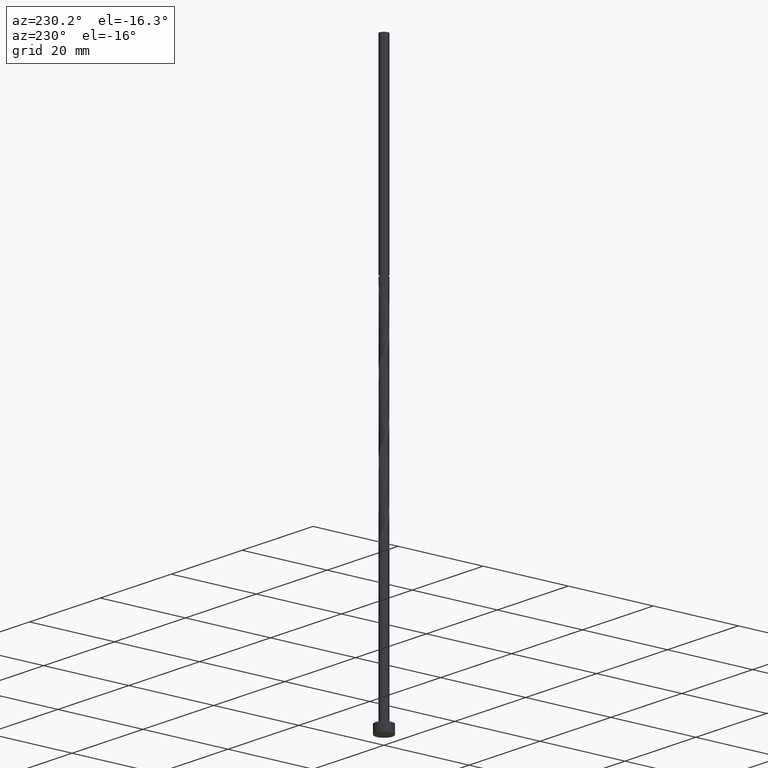
[diagram: clean part render]
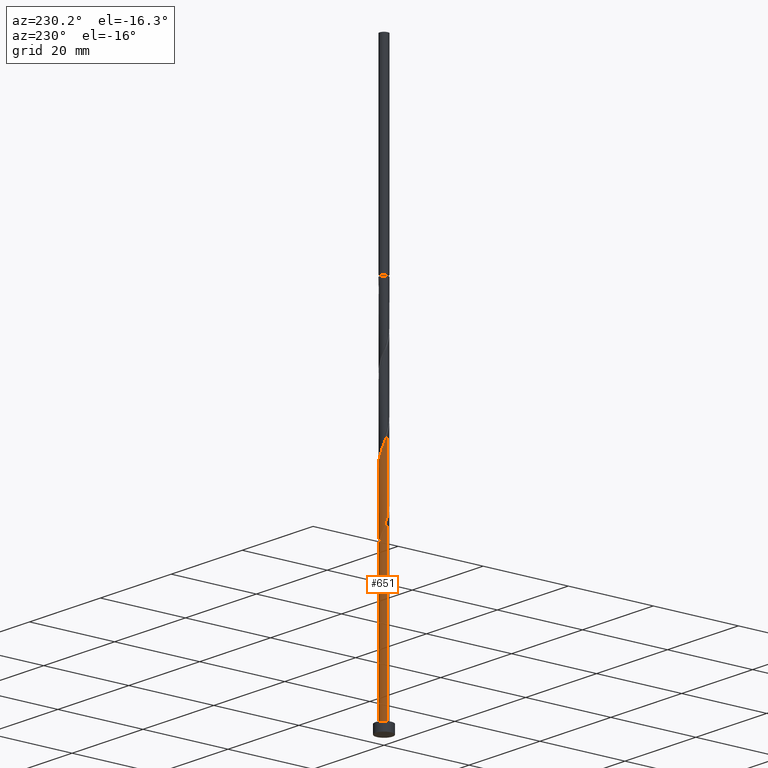
[diagram: same view with one face highlighted and labeled with its STEP entity id]
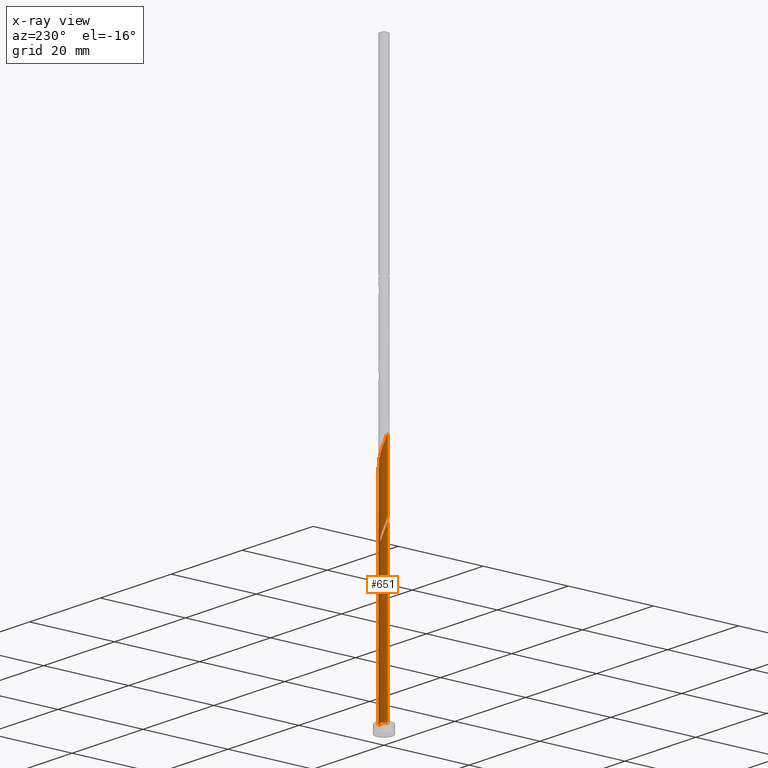
[diagram: x-ray of the same camera — body ghosted, the highlighted face saturated]
A machine part, auxiliary view. The second image highlights one B-rep face of the part: STEP entity #651.
The next image is the same camera in x-ray: the body ghosted, the highlighted face saturated — about 0% of this face is hidden behind the body in this view.
In plain terms, the highlighted cylindrical surface (edge-blend (fillet) strip) has radius 1 mm, axis along (-0, -0, -1).
Its self-contained STEP definition (entity closure, byte-faithful):
#6 = CARTESIAN_POINT ( 'NONE',  ( 0.9996671490029763740, 0.02579905432887377725, 48.17226507037074157 ) ) ;
#9 = EDGE_CURVE ( 'NONE', #1105, #296, #215, .T. ) ;
#13 = CARTESIAN_POINT ( 'NONE',  ( 0.1989974874213210343, 0.9800000000000025357, 36.13522803333370348 ) ) ;
#25 = CARTESIAN_POINT ( 'NONE',  ( -0.9305560469009561686, 0.3661494825560581701, 39.83893173703739876 ) ) ;
#47 = ORIENTED_EDGE ( 'NONE', *, *, #466, .F. ) ;
#58 = DIRECTION ( 'NONE',  ( -1.000000000000000000, 0.000000000000000000, 0.000000000000000000 ) ) ;
#61 = CARTESIAN_POINT ( 'NONE',  ( -0.6725544933721987473, 0.7607638645273787636, 54.19078358888926061 ) ) ;
#66 = VECTOR ( 'NONE', #342, 1000.000000000000000 ) ;
#90 = CIRCLE ( 'NONE', #736, 1.000000000000000000 ) ;
#101 = VERTEX_POINT ( 'NONE', #354 ) ;
#106 = CARTESIAN_POINT ( 'NONE',  ( 0.02619704632702449590, 1.015088626125574711, 36.59819099629665118 ) ) ;
#108 = ORIENTED_EDGE ( 'NONE', *, *, #9, .T. ) ;
#111 = EDGE_CURVE ( 'NONE', #327, #1160, #1255, .T. ) ;
#114 = CARTESIAN_POINT ( 'NONE',  ( -0.6324182898423038601, 0.7944421381061699261, 38.45004284814852724 ) ) ;
#128 = CYLINDRICAL_SURFACE ( 'NONE', #1341, 1.000000000000000000 ) ;
#158 = DIRECTION ( 'NONE',  ( -0.000000000000000000, -0.000000000000000000, -1.000000000000000000 ) ) ;
#175 = CARTESIAN_POINT ( 'NONE',  ( 0.000000000000000000, 0.000000000000000000, 2.000000000000000000 ) ) ;
#176 = VERTEX_POINT ( 'NONE', #287 ) ;
#188 =( BOUNDED_CURVE ( )  B_SPLINE_CURVE ( 2, ( #453, #1463, #1217, #1020, #1003, #1134, #893, #283, #1324 ),
 .UNSPECIFIED., .F., .T. ) 
 B_SPLINE_CURVE_WITH_KNOTS ( ( 3, 2, 2, 2, 3 ),
 ( 0.000000000000000000, 0.01388888888888884128, 0.02777777777777779011, 0.04166666666666662966, 0.05452480538552942346 ),
 .UNSPECIFIED. ) 
 CURVE ( )  GEOMETRIC_REPRESENTATION_ITEM ( )  RATIONAL_B_SPLINE_CURVE ( ( 0.9090909090909280454, 0.8952797754656623974, 0.9090909090909280454, 0.8952797754656623974, 0.9090909090909280454, 0.8952797754656623974, 0.9090909090909280454, 0.8963047551056021467, 0.9071930855141409067 ) ) 
 REPRESENTATION_ITEM ( '' )  );
#215 = CIRCLE ( 'NONE', #1154, 1.000000000000000000 ) ;
#238 = CARTESIAN_POINT ( 'NONE',  ( 0.9951180796480326718, 0.2020673444260075446, 48.63522803333371769 ) ) ;
#249 = CARTESIAN_POINT ( 'NONE',  ( -0.1989974874213205625, 0.9800000000000025357, 36.13522803333370348 ) ) ;
#283 = CARTESIAN_POINT ( 'NONE',  ( -1.000000000000002442, 0.1630543718204562897, 39.34112029931267074 ) ) ;
#287 = CARTESIAN_POINT ( 'NONE',  ( -1.000000000000000000, 0.000000000000000000, 2.000000000000000000 ) ) ;
#296 = VERTEX_POINT ( 'NONE', #13 ) ;
#319 = DIRECTION ( 'NONE',  ( 1.000000000000000000, 0.000000000000000000, 0.000000000000000000 ) ) ;
#327 = VERTEX_POINT ( 'NONE', #913 ) ;
#333 = EDGE_CURVE ( 'NONE', #327, #583, #350, .T. ) ;
#334 = CARTESIAN_POINT ( 'NONE',  ( -0.9951180796480328938, 0.2020673444260077944, 40.30189470000035357 ) ) ;
#342 = DIRECTION ( 'NONE',  ( -0.000000000000000000, -0.000000000000000000, -1.000000000000000000 ) ) ;
#350 = LINE ( 'NONE', #818, #1034 ) ;
#354 = CARTESIAN_POINT ( 'NONE',  ( -1.000000000000002220, -1.492029283871000850E-15, 40.83274958832245716 ) ) ;
#378 = CARTESIAN_POINT ( 'NONE',  ( -0.02619704632702447161, 1.015088626125574489, 52.33893173703741297 ) ) ;
#394 = CARTESIAN_POINT ( 'NONE',  ( -0.7823727769265514942, 0.6228104349834223674, 54.65374655185222252 ) ) ;
#409 = DIRECTION ( 'NONE',  ( 0.000000000000000000, 0.000000000000000000, 1.000000000000000000 ) ) ;
#450 = CARTESIAN_POINT ( 'NONE',  ( 0.7492061519980914852, 0.6623368793961392775, 50.02411692222257500 ) ) ;
#453 = CARTESIAN_POINT ( 'NONE',  ( -0.1989974874213205902, 0.9800000000000025357, 36.13522803333370348 ) ) ;
#466 = EDGE_CURVE ( 'NONE', #683, #176, #562, .T. ) ;
#469 = ORIENTED_EDGE ( 'NONE', *, *, #111, .F. ) ;
#475 = CARTESIAN_POINT ( 'NONE',  ( -1.000000000000001998, 0.01290167433201710318, 40.79873221439009967 ) ) ;
#491 = CARTESIAN_POINT ( 'NONE',  ( -0.8659940141538794434, 0.5302316206861082959, 39.37596877407443685 ) ) ;
#524 = ORIENTED_EDGE ( 'NONE', *, *, #1280, .T. ) ;
#562 = LINE ( 'NONE', #928, #66 ) ;
#565 = CARTESIAN_POINT ( 'NONE',  ( 0.9305560469009561686, 0.3661494825560575594, 49.09819099629667249 ) ) ;
#583 = VERTEX_POINT ( 'NONE', #1212 ) ;
#587 = CARTESIAN_POINT ( 'NONE',  ( -0.7492061519980917073, 0.6623368793961393886, 38.91300581111148915 ) ) ;
#603 = VECTOR ( 'NONE', #657, 1000.000000000000000 ) ;
#625 = ORIENTED_EDGE ( 'NONE', *, *, #1260, .F. ) ;
#651 = ADVANCED_FACE ( 'NONE', ( #1189 ), #128, .T. ) ;
#657 = DIRECTION ( 'NONE',  ( -0.000000000000000000, -0.000000000000000000, -1.000000000000000000 ) ) ;
#682 = CARTESIAN_POINT ( 'NONE',  ( -1.000000000000002220, -1.492029283871000850E-15, 40.83274958832245716 ) ) ;
#683 = VERTEX_POINT ( 'NONE', #745 ) ;
#726 = CARTESIAN_POINT ( 'NONE',  ( -0.1989974874213203404, 0.9800000000000025357, 52.80189470000037488 ) ) ;
#736 = AXIS2_PLACEMENT_3D ( 'NONE', #175, #409, #319 ) ;
#745 = CARTESIAN_POINT ( 'NONE',  ( -1.000000000000001776, -1.217525773571817085E-15, 39.77103981167829261 ) ) ;
#752 = CARTESIAN_POINT ( 'NONE',  ( -0.5221762109439075372, 0.8528376192009042844, 53.72782062592629870 ) ) ;
#771 = DIRECTION ( 'NONE',  ( -1.000000000000000000, 0.000000000000000000, 0.000000000000000000 ) ) ;
#818 = CARTESIAN_POINT ( 'NONE',  ( 1.000000000000000000, 1.224646799147353207E-16, 132.0000000000000000 ) ) ;
#844 = EDGE_CURVE ( 'NONE', #101, #296, #929, .T. ) ;
#845 = CARTESIAN_POINT ( 'NONE',  ( 0.1481832699744052573, 0.9889599175394800934, 51.87596877407444396 ) ) ;
#863 = CARTESIAN_POINT ( 'NONE',  ( -1.000000000000001998, 0.1630543718204567616, 56.00778696597934925 ) ) ;
#893 = CARTESIAN_POINT ( 'NONE',  ( -0.9482036394194119922, 0.3176631206038632582, 38.91300581111148915 ) ) ;
#908 = CARTESIAN_POINT ( 'NONE',  ( 0.6324182898423037491, 0.7944421381061698151, 50.48707988518554401 ) ) ;
#913 = CARTESIAN_POINT ( 'NONE',  ( 1.000000000000001554, -1.577928341515621780E-15, 48.10437314501162120 ) ) ;
#928 = CARTESIAN_POINT ( 'NONE',  ( -1.000000000000000000, 0.000000000000000000, 132.0000000000000000 ) ) ;
#929 =( BOUNDED_CURVE ( )  B_SPLINE_CURVE ( 2, ( #682, #475, #1157, #334, #25, #491, #587, #114, #954, #1174, #1397, #106, #1181 ),
 .UNSPECIFIED., .F., .T. ) 
 B_SPLINE_CURVE_WITH_KNOTS ( ( 3, 2, 2, 2, 2, 2, 3 ),
 ( 0.9295248053855290626, 0.9305555555555555802, 0.9444444444444444198, 0.9583333333333333703, 0.9722222222222222099, 0.9861111111111111605, 1.000000000000000000 ),
 .UNSPECIFIED. ) 
 CURVE ( )  GEOMETRIC_REPRESENTATION_ITEM ( )  RATIONAL_B_SPLINE_CURVE ( ( 0.9071930855141306926, 0.9080659294509783042, 0.9090909090909183865, 0.8952797754656529605, 0.9090909090909183865, 0.8952797754656529605, 0.9090909090909183865, 0.8952797754656529605, 0.9090909090909183865, 0.8952797754656529605, 0.9090909090909183865, 0.8952797754656529605, 0.9090909090909183865 ) ) 
 REPRESENTATION_ITEM ( '' )  );
#954 = CARTESIAN_POINT ( 'NONE',  ( -0.4774909380590686703, 0.8786366735297782560, 37.98707988518555823 ) ) ;
#969 = CARTESIAN_POINT ( 'NONE',  ( 0.3225635862758341466, 0.9628312089533860307, 51.41300581111148205 ) ) ;
#988 = CARTESIAN_POINT ( 'NONE',  ( 0.000000000000000000, 0.000000000000000000, 36.13522803333368927 ) ) ;
#999 = CARTESIAN_POINT ( 'NONE',  ( -0.8921910604809037970, 0.4848570054394661932, 55.11670951481519154 ) ) ;
#1003 = CARTESIAN_POINT ( 'NONE',  ( -0.7823727769265514942, 0.6228104349834223674, 37.98707988518555823 ) ) ;
#1020 = CARTESIAN_POINT ( 'NONE',  ( -0.6725544933721987473, 0.7607638645273787636, 37.52411692222258921 ) ) ;
#1027 = DIRECTION ( 'NONE',  ( -0.000000000000000000, -0.000000000000000000, -1.000000000000000000 ) ) ;
#1034 = VECTOR ( 'NONE', #1027, 1000.000000000000000 ) ;
#1078 = CARTESIAN_POINT ( 'NONE',  ( 0.4774909380590689478, 0.8786366735297777009, 50.95004284814852014 ) ) ;
#1101 = CARTESIAN_POINT ( 'NONE',  ( -0.3717979285156166602, 0.9449113738744300273, 53.26485766296333679 ) ) ;
#1105 = VERTEX_POINT ( 'NONE', #249 ) ;
#1109 = DIRECTION ( 'NONE',  ( 0.000000000000000000, 0.000000000000000000, -1.000000000000000000 ) ) ;
#1113 = ORIENTED_EDGE ( 'NONE', *, *, #1319, .F. ) ;
#1130 = EDGE_LOOP ( 'NONE', ( #469, #1382, #524, #47, #1113, #108, #1254, #625 ) ) ;
#1134 = CARTESIAN_POINT ( 'NONE',  ( -0.8921910604809037970, 0.4848570054394661932, 38.45004284814853435 ) ) ;
#1147 = CARTESIAN_POINT ( 'NONE',  ( 1.000000000000001554, -1.577928341515621977E-15, 48.10437314501162120 ) ) ;
#1154 = AXIS2_PLACEMENT_3D ( 'NONE', #988, #1109, #771 ) ;
#1157 = CARTESIAN_POINT ( 'NONE',  ( -0.9996671490029767071, 0.02579905432887377378, 40.76485766296332258 ) ) ;
#1160 = VERTEX_POINT ( 'NONE', #1331 ) ;
#1162 = CARTESIAN_POINT ( 'NONE',  ( 1.000000000000001776, 0.01290167433201984230, 48.13839051894397869 ) ) ;
#1174 = CARTESIAN_POINT ( 'NONE',  ( -0.3225635862758337580, 0.9628312089533865858, 37.52411692222258921 ) ) ;
#1181 = CARTESIAN_POINT ( 'NONE',  ( 0.1989974874213210065, 0.9800000000000025357, 36.13522803333370348 ) ) ;
#1189 = FACE_OUTER_BOUND ( 'NONE', #1130, .T. ) ;
#1212 = CARTESIAN_POINT ( 'NONE',  ( 1.000000000000000000, 1.224646799147353207E-16, 2.000000000000000000 ) ) ;
#1217 = CARTESIAN_POINT ( 'NONE',  ( -0.5221762109439075372, 0.8528376192009042844, 37.06115395925962019 ) ) ;
#1254 = ORIENTED_EDGE ( 'NONE', *, *, #844, .F. ) ;
#1255 =( BOUNDED_CURVE ( )  B_SPLINE_CURVE ( 2, ( #1147, #1162, #6, #238, #565, #1470, #450, #908, #1078, #969, #845, #378, #726, #1101, #752, #61, #394, #999, #1448, #863, #1344 ),
 .UNSPECIFIED., .F., .T. ) 
 B_SPLINE_CURVE_WITH_KNOTS ( ( 3, 2, 2, 2, 2, 2, 2, 2, 2, 2, 3 ),
 ( 0.1795248053855292847, 0.1805555555555555802, 0.1944444444444444198, 0.2083333333333333703, 0.2222222222222222099, 0.2361111111111111605, 0.2500000000000000000, 0.2638888888888888395, 0.2777777777777777901, 0.2916666666666666297, 0.3045248053855293957 ),
 .UNSPECIFIED. ) 
 CURVE ( )  GEOMETRIC_REPRESENTATION_ITEM ( )  RATIONAL_B_SPLINE_CURVE ( ( 0.9071930855141405736, 0.9080659294509880741, 0.9090909090909280454, 0.8952797754656623974, 0.9090909090909280454, 0.8952797754656623974, 0.9090909090909280454, 0.8952797754656623974, 0.9090909090909280454, 0.8952797754656623974, 0.9090909090909280454, 0.8952797754656623974, 0.9090909090909280454, 0.8952797754656623974, 0.9090909090909280454, 0.8952797754656623974, 0.9090909090909280454, 0.8952797754656623974, 0.9090909090909280454, 0.8963047551056021467, 0.9071930855141407957 ) ) 
 REPRESENTATION_ITEM ( '' )  );
#1260 = EDGE_CURVE ( 'NONE', #1160, #101, #1353, .T. ) ;
#1280 = EDGE_CURVE ( 'NONE', #583, #176, #90, .T. ) ;
#1292 = CARTESIAN_POINT ( 'NONE',  ( 0.000000000000000000, 0.000000000000000000, 132.0000000000000000 ) ) ;
#1319 = EDGE_CURVE ( 'NONE', #1105, #683, #188, .T. ) ;
#1324 = CARTESIAN_POINT ( 'NONE',  ( -1.000000000000001776, -1.217525773571817085E-15, 39.77103981167829261 ) ) ;
#1331 = CARTESIAN_POINT ( 'NONE',  ( -1.000000000000001776, -1.217525773571817085E-15, 56.43770647834496401 ) ) ;
#1341 = AXIS2_PLACEMENT_3D ( 'NONE', #1292, #158, #58 ) ;
#1344 = CARTESIAN_POINT ( 'NONE',  ( -1.000000000000001776, -1.217525773571817283E-15, 56.43770647834497112 ) ) ;
#1353 = LINE ( 'NONE', #1433, #603 ) ;
#1382 = ORIENTED_EDGE ( 'NONE', *, *, #333, .T. ) ;
#1397 = CARTESIAN_POINT ( 'NONE',  ( -0.1481832699744045634, 0.9889599175394805375, 37.06115395925963441 ) ) ;
#1433 = CARTESIAN_POINT ( 'NONE',  ( -1.000000000000000000, 0.000000000000000000, 132.0000000000000000 ) ) ;
#1448 = CARTESIAN_POINT ( 'NONE',  ( -0.9482036394194119922, 0.3176631206038632582, 55.57967247777816056 ) ) ;
#1463 = CARTESIAN_POINT ( 'NONE',  ( -0.3717979285156166602, 0.9449113738744300273, 36.59819099629666539 ) ) ;
#1470 = CARTESIAN_POINT ( 'NONE',  ( 0.8659940141538798875, 0.5302316206861077408, 49.56115395925962730 ) ) ;